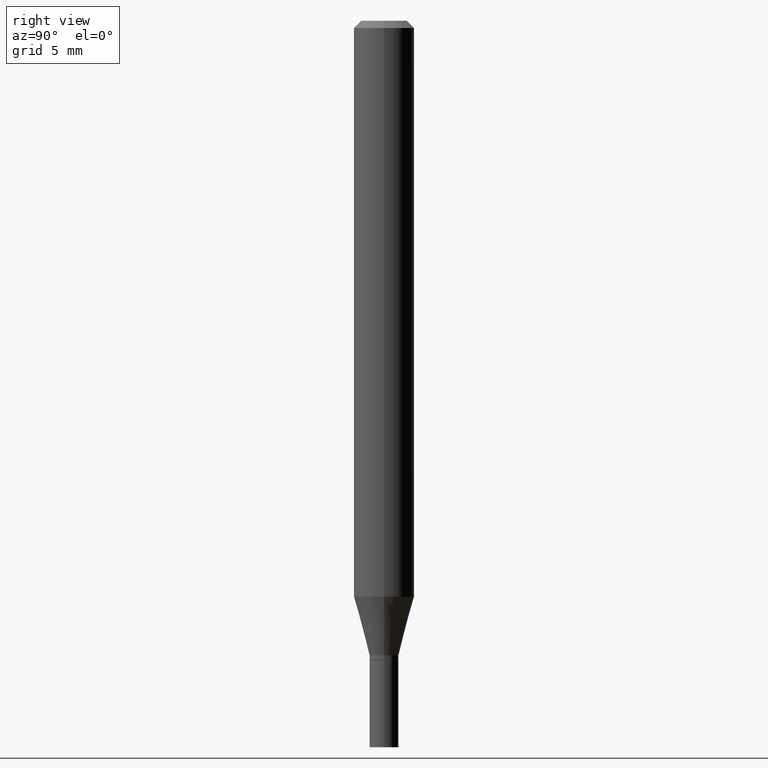
[diagram: clean part render]
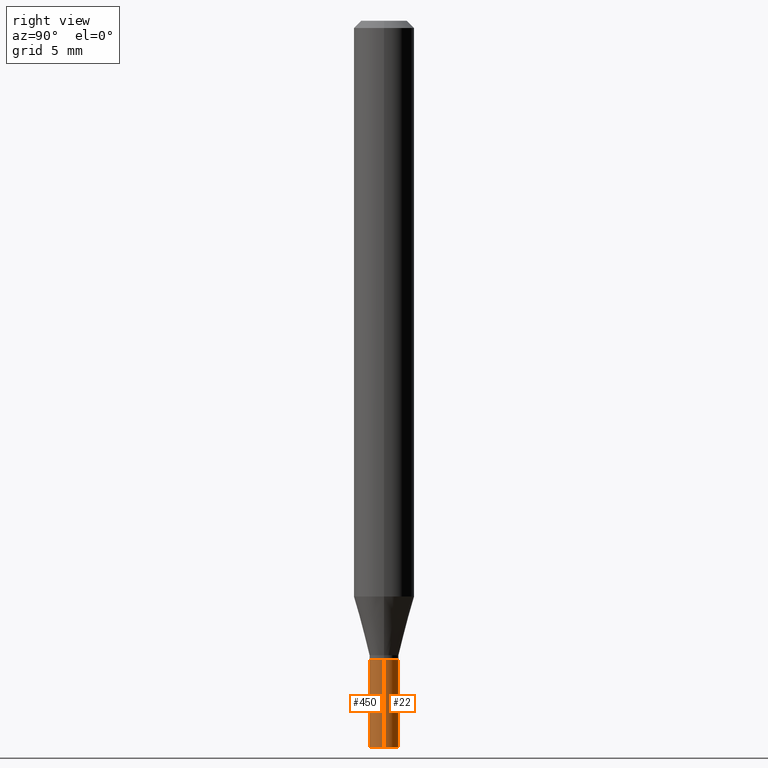
[diagram: same view with one multi-face feature highlighted, each face labeled with its STEP entity id]
A machine part, right view. The highlighted faces form ONE feature: a constant-radius fillet chain: 2 tangent blend faces with common blend radius 0.762 mm. The faces share edges in the B-rep.
Their STEP definitions:
[1] entity #22 (Cylinder):
#5 = ORIENTED_EDGE ( 'NONE', *, *, #178, .T. ) ;
#18 = DIRECTION ( 'NONE',  ( 1.000000000000000000, -6.982962677686268288E-15, 0.000000000000000000 ) ) ;
#22 = ADVANCED_FACE ( 'NONE', ( #303 ), #382, .T. ) ;
#37 = CARTESIAN_POINT ( 'NONE',  ( -0.02999999999999999889, 2.131628207280300479E-16, -1.475680527076471707E-30 ) ) ;
#54 = CARTESIAN_POINT ( 'NONE',  ( 0.02999999999999999889, -4.818244247603540754E-15, -1.320000000000000062 ) ) ;
#63 = DIRECTION ( 'NONE',  ( -2.445468806185136597E-29, 3.491481338843145583E-15, 1.000000000000000000 ) ) ;
#76 = DIRECTION ( 'NONE',  ( -2.445468806185136597E-29, 3.491481338843145583E-15, 1.000000000000000000 ) ) ;
#86 = DIRECTION ( 'NONE',  ( 1.000000000000000000, -6.982962677686268288E-15, 0.000000000000000000 ) ) ;
#87 = EDGE_CURVE ( 'NONE', #165, #191, #431, .T. ) ;
#89 = AXIS2_PLACEMENT_3D ( 'NONE', #258, #63, #86 ) ;
#105 = VECTOR ( 'NONE', #174, 39.37007874015748143 ) ;
#109 = DIRECTION ( 'NONE',  ( -2.445468806185136877E-29, 3.491481338843145188E-15, 1.000000000000000000 ) ) ;
#122 = ORIENTED_EDGE ( 'NONE', *, *, #396, .F. ) ;
#137 = ORIENTED_EDGE ( 'NONE', *, *, #185, .F. ) ;
#138 = CARTESIAN_POINT ( 'NONE',  ( 0.02999999999999999889, -5.446710888595306494E-15, -1.500000000000000222 ) ) ;
#156 = CARTESIAN_POINT ( 'NONE',  ( -0.02999999999999999889, -4.709825867040805456E-15, -1.320000000000000062 ) ) ;
#165 = VERTEX_POINT ( 'NONE', #138 ) ;
#173 = AXIS2_PLACEMENT_3D ( 'NONE', #451, #339, #18 ) ;
#174 = DIRECTION ( 'NONE',  ( -2.445468806185136877E-29, 3.491481338843145188E-15, 1.000000000000000000 ) ) ;
#175 = CIRCLE ( 'NONE', #89, 0.02999999999999999889 ) ;
#177 = LINE ( 'NONE', #37, #105 ) ;
#178 = EDGE_CURVE ( 'NONE', #191, #354, #177, .T. ) ;
#185 = EDGE_CURVE ( 'NONE', #165, #413, #353, .T. ) ;
#191 = VERTEX_POINT ( 'NONE', #249 ) ;
#240 = CARTESIAN_POINT ( 'NONE',  ( 0.000000000000000000, 0.000000000000000000, 0.000000000000000000 ) ) ;
#249 = CARTESIAN_POINT ( 'NONE',  ( -0.02999999999999999889, -4.709825867040805456E-15, -1.500000000000000222 ) ) ;
#258 = CARTESIAN_POINT ( 'NONE',  ( 3.228018824164380442E-29, -4.608755367272952437E-15, -1.320000000000000062 ) ) ;
#283 = CARTESIAN_POINT ( 'NONE',  ( 0.02999999999999999889, -2.094888803305880210E-16, 1.462853032738780878E-30 ) ) ;
#284 = ORIENTED_EDGE ( 'NONE', *, *, #87, .T. ) ;
#296 = EDGE_LOOP ( 'NONE', ( #284, #5, #122, #137 ) ) ;
#303 = FACE_OUTER_BOUND ( 'NONE', #296, .T. ) ;
#339 = DIRECTION ( 'NONE',  ( -2.445468806185136597E-29, 3.491481338843145583E-15, 1.000000000000000000 ) ) ;
#353 = LINE ( 'NONE', #283, #421 ) ;
#354 = VERTEX_POINT ( 'NONE', #156 ) ;
#382 = CYLINDRICAL_SURFACE ( 'NONE', #409, 0.02999999999999999889 ) ;
#396 = EDGE_CURVE ( 'NONE', #413, #354, #175, .T. ) ;
#409 = AXIS2_PLACEMENT_3D ( 'NONE', #240, #76, #412 ) ;
#412 = DIRECTION ( 'NONE',  ( 1.000000000000000000, -6.982962677686267499E-15, 4.876176775795936353E-29 ) ) ;
#413 = VERTEX_POINT ( 'NONE', #54 ) ;
#421 = VECTOR ( 'NONE', #109, 39.37007874015748143 ) ;
#431 = CIRCLE ( 'NONE', #173, 0.02999999999999999889 ) ;
#451 = CARTESIAN_POINT ( 'NONE',  ( 3.668203209277704895E-29, -5.237222008264718177E-15, -1.500000000000000222 ) ) ;
[2] entity #450 (Cylinder):
#3 = AXIS2_PLACEMENT_3D ( 'NONE', #252, #386, #213 ) ;
#37 = CARTESIAN_POINT ( 'NONE',  ( -0.02999999999999999889, 2.131628207280300479E-16, -1.475680527076471707E-30 ) ) ;
#52 = AXIS2_PLACEMENT_3D ( 'NONE', #260, #369, #92 ) ;
#54 = CARTESIAN_POINT ( 'NONE',  ( 0.02999999999999999889, -4.818244247603540754E-15, -1.320000000000000062 ) ) ;
#92 = DIRECTION ( 'NONE',  ( 1.000000000000000000, -6.982962677686268288E-15, 0.000000000000000000 ) ) ;
#105 = VECTOR ( 'NONE', #174, 39.37007874015748143 ) ;
#109 = DIRECTION ( 'NONE',  ( -2.445468806185136877E-29, 3.491481338843145188E-15, 1.000000000000000000 ) ) ;
#138 = CARTESIAN_POINT ( 'NONE',  ( 0.02999999999999999889, -5.446710888595306494E-15, -1.500000000000000222 ) ) ;
#156 = CARTESIAN_POINT ( 'NONE',  ( -0.02999999999999999889, -4.709825867040805456E-15, -1.320000000000000062 ) ) ;
#158 = ORIENTED_EDGE ( 'NONE', *, *, #178, .F. ) ;
#165 = VERTEX_POINT ( 'NONE', #138 ) ;
#174 = DIRECTION ( 'NONE',  ( -2.445468806185136877E-29, 3.491481338843145188E-15, 1.000000000000000000 ) ) ;
#177 = LINE ( 'NONE', #37, #105 ) ;
#178 = EDGE_CURVE ( 'NONE', #191, #354, #177, .T. ) ;
#185 = EDGE_CURVE ( 'NONE', #165, #413, #353, .T. ) ;
#191 = VERTEX_POINT ( 'NONE', #249 ) ;
#204 = ORIENTED_EDGE ( 'NONE', *, *, #185, .T. ) ;
#208 = EDGE_CURVE ( 'NONE', #191, #165, #232, .T. ) ;
#210 = FACE_OUTER_BOUND ( 'NONE', #444, .T. ) ;
#213 = DIRECTION ( 'NONE',  ( 1.000000000000000000, -6.982962677686268288E-15, 0.000000000000000000 ) ) ;
#224 = ORIENTED_EDGE ( 'NONE', *, *, #208, .T. ) ;
#232 = CIRCLE ( 'NONE', #3, 0.02999999999999999889 ) ;
#244 = EDGE_CURVE ( 'NONE', #354, #413, #384, .T. ) ;
#249 = CARTESIAN_POINT ( 'NONE',  ( -0.02999999999999999889, -4.709825867040805456E-15, -1.500000000000000222 ) ) ;
#252 = CARTESIAN_POINT ( 'NONE',  ( 3.668203209277704895E-29, -5.237222008264718177E-15, -1.500000000000000222 ) ) ;
#253 = CARTESIAN_POINT ( 'NONE',  ( 0.000000000000000000, 0.000000000000000000, 0.000000000000000000 ) ) ;
#260 = CARTESIAN_POINT ( 'NONE',  ( 3.228018824164380442E-29, -4.608755367272952437E-15, -1.320000000000000062 ) ) ;
#266 = ORIENTED_EDGE ( 'NONE', *, *, #244, .F. ) ;
#283 = CARTESIAN_POINT ( 'NONE',  ( 0.02999999999999999889, -2.094888803305880210E-16, 1.462853032738780878E-30 ) ) ;
#321 = AXIS2_PLACEMENT_3D ( 'NONE', #253, #351, #389 ) ;
#351 = DIRECTION ( 'NONE',  ( -2.445468806185136597E-29, 3.491481338843145583E-15, 1.000000000000000000 ) ) ;
#353 = LINE ( 'NONE', #283, #421 ) ;
#354 = VERTEX_POINT ( 'NONE', #156 ) ;
#369 = DIRECTION ( 'NONE',  ( -2.445468806185136597E-29, 3.491481338843145583E-15, 1.000000000000000000 ) ) ;
#384 = CIRCLE ( 'NONE', #52, 0.02999999999999999889 ) ;
#386 = DIRECTION ( 'NONE',  ( -2.445468806185136597E-29, 3.491481338843145583E-15, 1.000000000000000000 ) ) ;
#389 = DIRECTION ( 'NONE',  ( 1.000000000000000000, -6.982962677686267499E-15, 4.876176775795936353E-29 ) ) ;
#413 = VERTEX_POINT ( 'NONE', #54 ) ;
#421 = VECTOR ( 'NONE', #109, 39.37007874015748143 ) ;
#428 = CYLINDRICAL_SURFACE ( 'NONE', #321, 0.02999999999999999889 ) ;
#444 = EDGE_LOOP ( 'NONE', ( #158, #224, #204, #266 ) ) ;
#450 = ADVANCED_FACE ( 'NONE', ( #210 ), #428, .T. ) ;